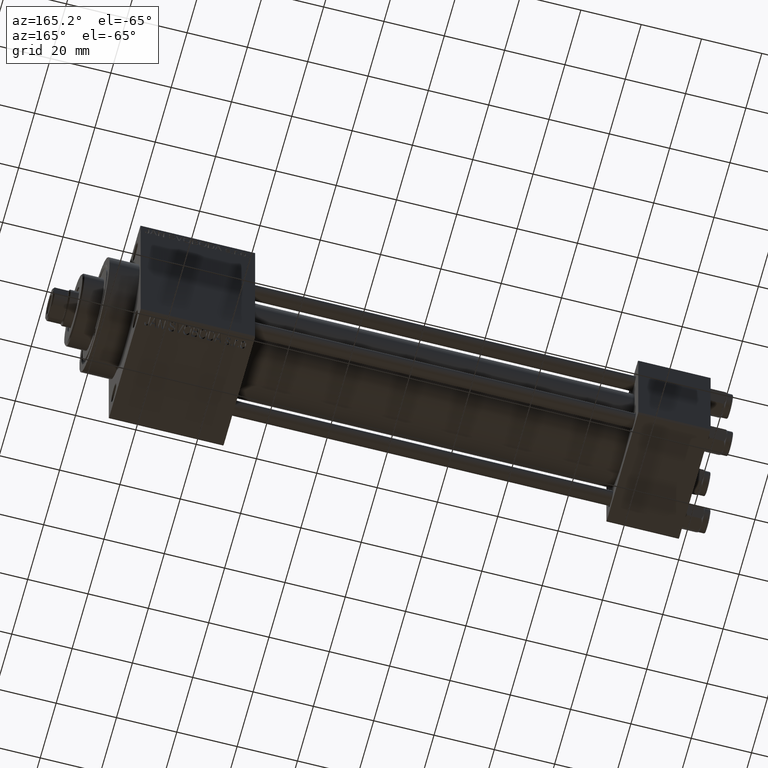
[diagram: clean part render]
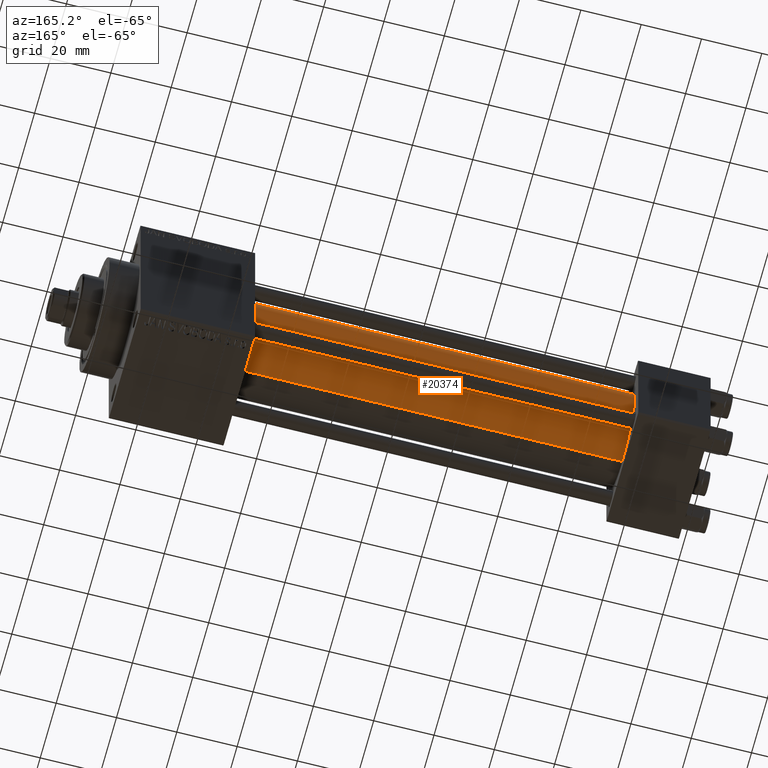
[diagram: same view with one face highlighted and labeled with its STEP entity id]
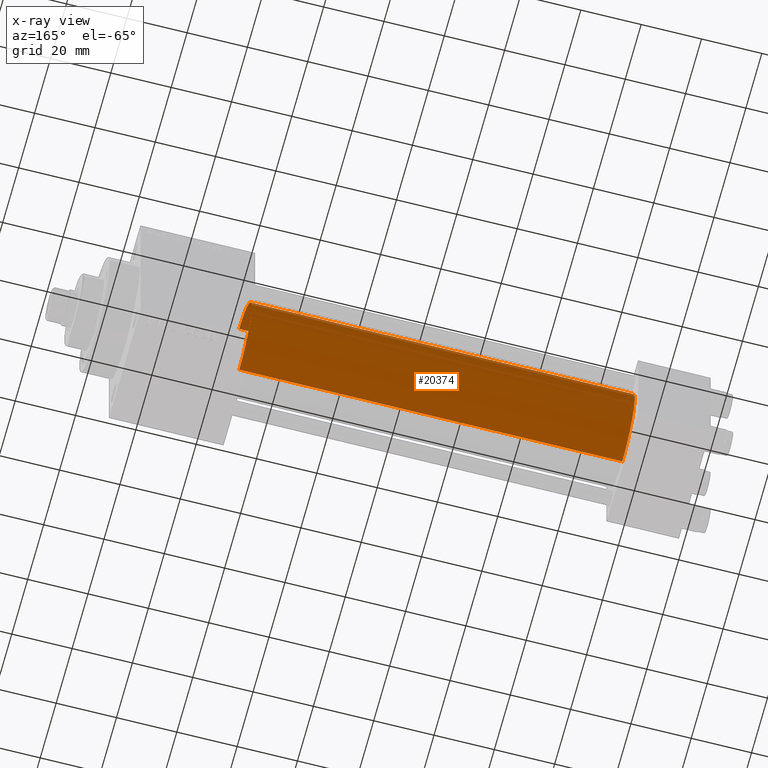
[diagram: x-ray of the same camera — body ghosted, the highlighted face saturated]
A machine part, auxiliary view. The second image highlights one B-rep face of the part: STEP entity #20374.
The next image is the same camera in x-ray: the body ghosted, the highlighted face saturated — about 1% of this face is hidden behind the body in this view.
In plain terms, the highlighted cylindrical surface (partial cylindrical patch) has radius 15.5 mm, axis along (-1, -0, -0).
Its self-contained STEP definition (entity closure, byte-faithful):
#819 = AXIS2_PLACEMENT_3D ( 'NONE', #35550, #46547, #14242 ) ;
#1743 = CARTESIAN_POINT ( 'NONE',  ( 23.99999999999999289, -7.038826752868131828E-16, -15.50000000000000000 ) ) ;
#1962 = EDGE_CURVE ( 'NONE', #12801, #33721, #44265, .T. ) ;
#4313 = EDGE_CURVE ( 'NONE', #15526, #12801, #8978, .T. ) ;
#8839 = LINE ( 'NONE', #23439, #37642 ) ;
#8978 = LINE ( 'NONE', #35054, #14554 ) ;
#10475 = DIRECTION ( 'NONE',  ( 0.000000000000000000, 0.000000000000000000, 1.000000000000000000 ) ) ;
#11360 = CARTESIAN_POINT ( 'NONE',  ( 23.99999999999999289, -2.602085213965210642E-15, 15.50000000000000000 ) ) ;
#11867 = FACE_OUTER_BOUND ( 'NONE', #26629, .T. ) ;
#12801 = VERTEX_POINT ( 'NONE', #1743 ) ;
#13340 = CARTESIAN_POINT ( 'NONE',  ( 23.99999999999999289, -2.602085213965210642E-15, 0.000000000000000000 ) ) ;
#14242 = DIRECTION ( 'NONE',  ( 0.000000000000000000, 0.000000000000000000, -1.000000000000000000 ) ) ;
#14554 = VECTOR ( 'NONE', #16393, 1000.000000000000000 ) ;
#14979 = CARTESIAN_POINT ( 'NONE',  ( 151.0000000000000000, -2.602085213965210642E-15, 0.000000000000000000 ) ) ;
#15444 = CYLINDRICAL_SURFACE ( 'NONE', #27977, 15.50000000000000000 ) ;
#15526 = VERTEX_POINT ( 'NONE', #44163 ) ;
#16123 = ORIENTED_EDGE ( 'NONE', *, *, #35303, .F. ) ;
#16393 = DIRECTION ( 'NONE',  ( -1.000000000000000000, -0.000000000000000000, -0.000000000000000000 ) ) ;
#18566 = DIRECTION ( 'NONE',  ( 0.000000000000000000, 0.000000000000000000, 1.000000000000000000 ) ) ;
#18734 = ORIENTED_EDGE ( 'NONE', *, *, #4313, .T. ) ;
#20374 = ADVANCED_FACE ( 'NONE', ( #11867 ), #15444, .T. ) ;
#21993 = CARTESIAN_POINT ( 'NONE',  ( 151.0000000000000000, -2.602085213965210642E-15, 15.50000000000000000 ) ) ;
#23439 = CARTESIAN_POINT ( 'NONE',  ( 151.0000000000000000, -2.602085213965210642E-15, 15.50000000000000000 ) ) ;
#23664 = DIRECTION ( 'NONE',  ( -1.000000000000000000, -0.000000000000000000, -0.000000000000000000 ) ) ;
#24109 = DIRECTION ( 'NONE',  ( 1.000000000000000000, 0.000000000000000000, 0.000000000000000000 ) ) ;
#26629 = EDGE_LOOP ( 'NONE', ( #16123, #18734, #39010, #35748 ) ) ;
#27977 = AXIS2_PLACEMENT_3D ( 'NONE', #14979, #41264, #18566 ) ;
#33721 = VERTEX_POINT ( 'NONE', #11360 ) ;
#35054 = CARTESIAN_POINT ( 'NONE',  ( 151.0000000000000000, -7.038826752868131828E-16, -15.50000000000000000 ) ) ;
#35303 = EDGE_CURVE ( 'NONE', #15526, #43968, #44336, .T. ) ;
#35550 = CARTESIAN_POINT ( 'NONE',  ( 151.0000000000000000, -2.602085213965210642E-15, 0.000000000000000000 ) ) ;
#35748 = ORIENTED_EDGE ( 'NONE', *, *, #40201, .F. ) ;
#35884 = AXIS2_PLACEMENT_3D ( 'NONE', #13340, #24109, #10475 ) ;
#37642 = VECTOR ( 'NONE', #23664, 1000.000000000000000 ) ;
#39010 = ORIENTED_EDGE ( 'NONE', *, *, #1962, .T. ) ;
#40201 = EDGE_CURVE ( 'NONE', #43968, #33721, #8839, .T. ) ;
#41264 = DIRECTION ( 'NONE',  ( -1.000000000000000000, -0.000000000000000000, -0.000000000000000000 ) ) ;
#43968 = VERTEX_POINT ( 'NONE', #21993 ) ;
#44163 = CARTESIAN_POINT ( 'NONE',  ( 151.0000000000000000, -7.038826752868131828E-16, -15.50000000000000000 ) ) ;
#44265 = CIRCLE ( 'NONE', #35884, 15.50000000000000000 ) ;
#44336 = CIRCLE ( 'NONE', #819, 15.50000000000000000 ) ;
#46547 = DIRECTION ( 'NONE',  ( 1.000000000000000000, 0.000000000000000000, 0.000000000000000000 ) ) ;